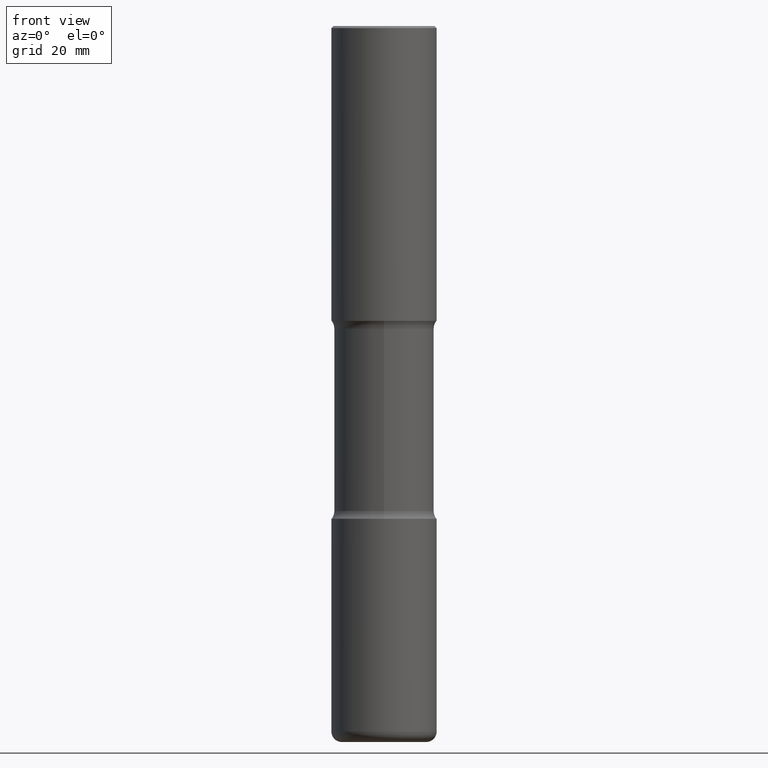
[diagram: clean part render]
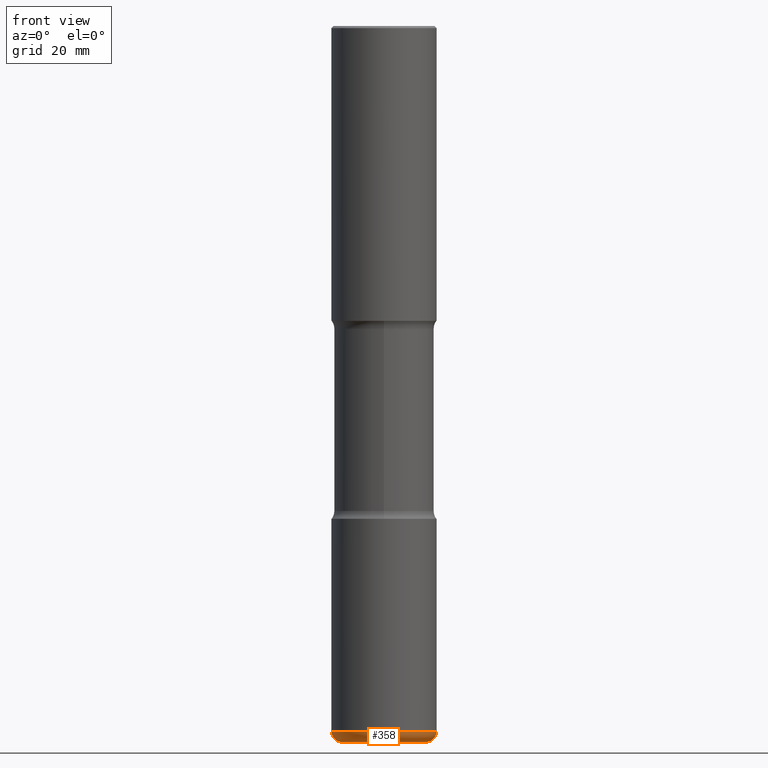
[diagram: same view with one face highlighted and labeled with its STEP entity id]
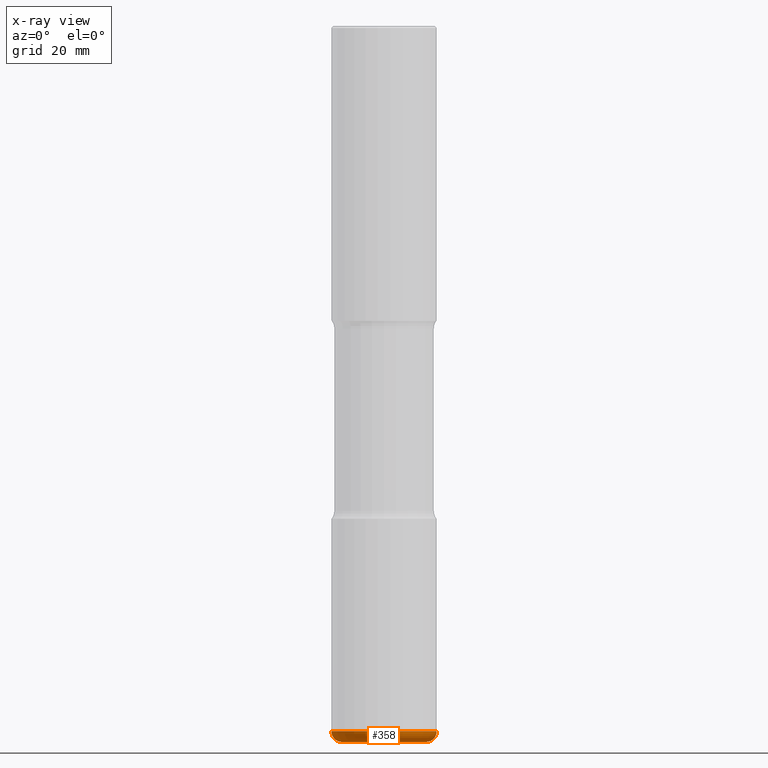
[diagram: x-ray of the same camera — body ghosted, the highlighted face saturated]
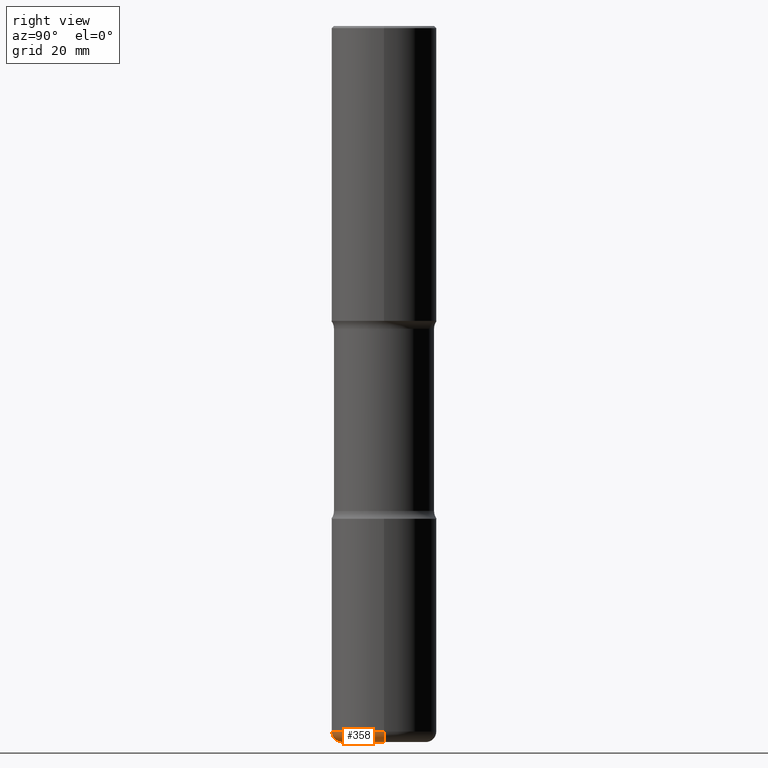
[diagram: same view with one face highlighted and labeled with its STEP entity id]
A machine part, front view. The second image highlights one B-rep face of the part: STEP entity #358.
The next image is the same camera in x-ray: the body ghosted, the highlighted face saturated — about 0% of this face is hidden behind the body in this view.
A second angle (right view) of the same face is appended — the face is thin or edge-on in the first view.
In plain terms, the highlighted toroidal blend (fillet) surface has major radius 10.0013 mm and minor (blend) radius 2.4994 mm.
Its self-contained STEP definition (entity closure, byte-faithful):
#5 = EDGE_CURVE ( 'NONE', #221, #25, #423, .T. ) ;
#11 = AXIS2_PLACEMENT_3D ( 'NONE', #38, #550, #498 ) ;
#18 = CARTESIAN_POINT ( 'NONE',  ( 0.4921500000000008646, -2.646123877082442695E-14, -6.594500000000000028 ) ) ;
#25 = VERTEX_POINT ( 'NONE', #18 ) ;
#38 = CARTESIAN_POINT ( 'NONE',  ( 0.3937500000000005440, -2.577411524334009474E-14, -6.594500000000000028 ) ) ;
#59 = EDGE_CURVE ( 'NONE', #441, #221, #536, .T. ) ;
#60 = DIRECTION ( 'NONE',  ( -2.445468806185136597E-29, 3.491481338843145583E-15, 1.000000000000000000 ) ) ;
#69 = CARTESIAN_POINT ( 'NONE',  ( 1.636727817291650190E-28, -2.336813545274329412E-14, -6.692900000000000738 ) ) ;
#86 = AXIS2_PLACEMENT_3D ( 'NONE', #69, #461, #459 ) ;
#111 = FACE_OUTER_BOUND ( 'NONE', #539, .T. ) ;
#116 = CIRCLE ( 'NONE', #86, 0.3937500000000005440 ) ;
#122 = CARTESIAN_POINT ( 'NONE',  ( -0.3937500000000005440, -2.004900552282284051E-14, -6.692900000000000738 ) ) ;
#139 = ORIENTED_EDGE ( 'NONE', *, *, #59, .F. ) ;
#142 = AXIS2_PLACEMENT_3D ( 'NONE', #165, #386, #250 ) ;
#165 = CARTESIAN_POINT ( 'NONE',  ( 1.612664404238788252E-28, -2.302457368900112328E-14, -6.594500000000000028 ) ) ;
#208 = VERTEX_POINT ( 'NONE', #419 ) ;
#221 = VERTEX_POINT ( 'NONE', #373 ) ;
#238 = AXIS2_PLACEMENT_3D ( 'NONE', #277, #353, #530 ) ;
#250 = DIRECTION ( 'NONE',  ( 1.000000000000000000, -6.982962677686266711E-15, 0.000000000000000000 ) ) ;
#267 = ORIENTED_EDGE ( 'NONE', *, *, #341, .T. ) ;
#277 = CARTESIAN_POINT ( 'NONE',  ( -0.3937500000000005440, -2.022681166694572691E-14, -6.594500000000000028 ) ) ;
#341 = EDGE_CURVE ( 'NONE', #208, #25, #494, .T. ) ;
#353 = DIRECTION ( 'NONE',  ( 7.105427357601001859E-15, 1.000000000000000000, -3.491481338843145583E-15 ) ) ;
#358 = ADVANCED_FACE ( 'NONE', ( #111 ), #440, .T. ) ;
#373 = CARTESIAN_POINT ( 'NONE',  ( -0.4921500000000008646, -1.952763761495778644E-14, -6.594500000000000028 ) ) ;
#386 = DIRECTION ( 'NONE',  ( -2.445468806185136597E-29, 3.491481338843145583E-15, 1.000000000000000000 ) ) ;
#388 = ORIENTED_EDGE ( 'NONE', *, *, #462, .T. ) ;
#417 = DIRECTION ( 'NONE',  ( 1.000000000000000000, -6.982962677686264344E-15, 4.883557194083112340E-29 ) ) ;
#419 = CARTESIAN_POINT ( 'NONE',  ( 0.3937500000000005440, -2.611767700708226558E-14, -6.692900000000000738 ) ) ;
#423 = CIRCLE ( 'NONE', #142, 0.4921500000000005315 ) ;
#440 = TOROIDAL_SURFACE ( 'NONE', #513, 0.3937500000000005440, 0.09840000000000065361 ) ;
#441 = VERTEX_POINT ( 'NONE', #122 ) ;
#456 = CARTESIAN_POINT ( 'NONE',  ( 1.612664404238788252E-28, -2.302457368900112328E-14, -6.594500000000000028 ) ) ;
#459 = DIRECTION ( 'NONE',  ( 1.000000000000000000, -6.982962677686266711E-15, 0.000000000000000000 ) ) ;
#461 = DIRECTION ( 'NONE',  ( -2.445468806185136597E-29, 3.491481338843145583E-15, 1.000000000000000000 ) ) ;
#462 = EDGE_CURVE ( 'NONE', #441, #208, #116, .T. ) ;
#494 = CIRCLE ( 'NONE', #11, 0.09840000000000065361 ) ;
#498 = DIRECTION ( 'NONE',  ( 1.000000000000000000, -6.982962677686254878E-15, 0.000000000000000000 ) ) ;
#502 = ORIENTED_EDGE ( 'NONE', *, *, #5, .F. ) ;
#513 = AXIS2_PLACEMENT_3D ( 'NONE', #456, #60, #417 ) ;
#530 = DIRECTION ( 'NONE',  ( -1.000000000000000000, 7.105427357601011325E-15, 0.000000000000000000 ) ) ;
#536 = CIRCLE ( 'NONE', #238, 0.09840000000000065361 ) ;
#539 = EDGE_LOOP ( 'NONE', ( #139, #388, #267, #502 ) ) ;
#550 = DIRECTION ( 'NONE',  ( -6.982962677686266711E-15, -1.000000000000000000, 3.491481338843145583E-15 ) ) ;